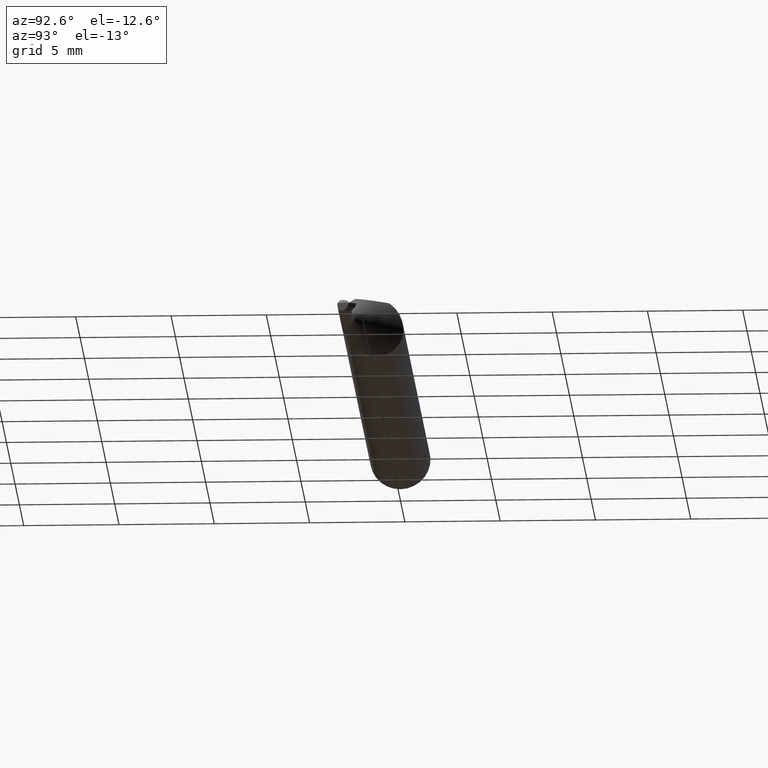
[diagram: clean part render]
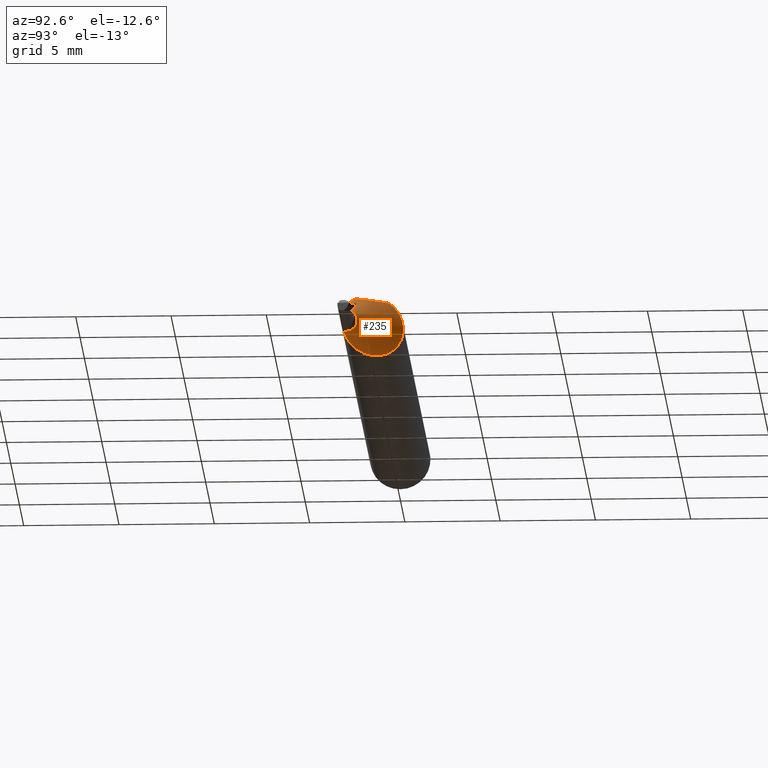
[diagram: same view with one face highlighted and labeled with its STEP entity id]
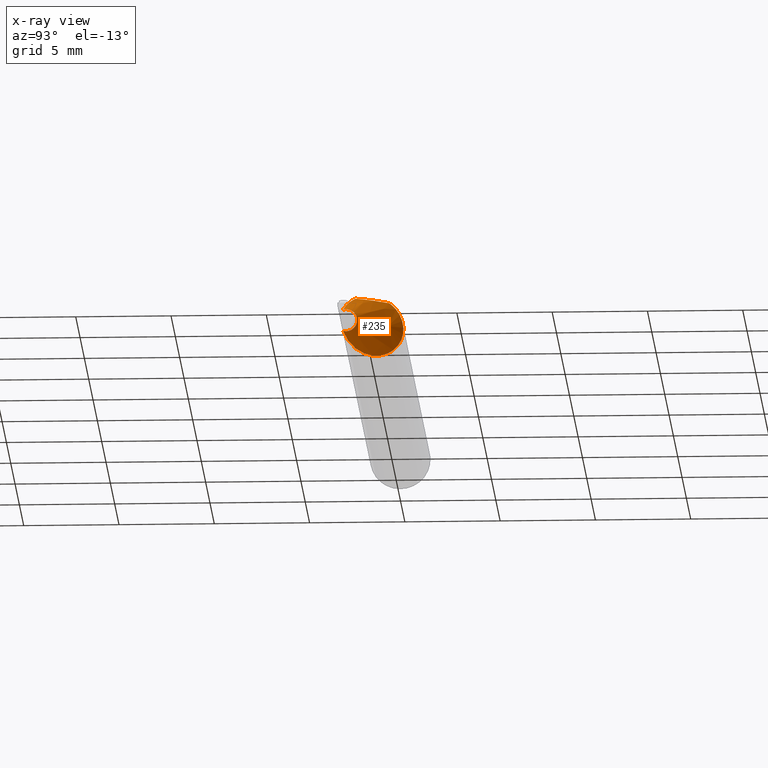
[diagram: x-ray of the same camera — body ghosted, the highlighted face saturated]
A machine part, auxiliary view. The second image highlights one B-rep face of the part: STEP entity #235.
The next image is the same camera in x-ray: the body ghosted, the highlighted face saturated — about 0% of this face is hidden behind the body in this view.
In plain terms, the highlighted conical surface has half-angle 45 deg.
Its self-contained STEP definition (entity closure, byte-faithful):
#21 = EDGE_CURVE ( 'NONE', #707, #754, #387, .T. ) ;
#33 = CARTESIAN_POINT ( 'NONE',  ( 1.255120519318515981, 0.03508918483241450781, -0.05178107122348592911 ) ) ;
#61 = CARTESIAN_POINT ( 'NONE',  ( 1.322462965412670277, -0.05242313377551017367, 0.03436517021900221264 ) ) ;
#80 = CARTESIAN_POINT ( 'NONE',  ( 1.267454584078048674, 0.01260720869674350486, -0.06124853553781112181 ) ) ;
#88 = DIRECTION ( 'NONE',  ( 0.000000000000000000, -1.000000000000000000, 0.000000000000000000 ) ) ;
#96 = CARTESIAN_POINT ( 'NONE',  ( 1.259711240465376747, 0.02638752936846765554, -0.05671180232617656358 ) ) ;
#105 = CARTESIAN_POINT ( 'NONE',  ( 1.301127731721387182, -0.03386738844375222074, 0.05234999999999997294 ) ) ;
#117 = DIRECTION ( 'NONE',  ( -1.000000000000000000, -5.738690339323287023E-17, -0.000000000000000000 ) ) ;
#125 = CARTESIAN_POINT ( 'NONE',  ( 1.333322330470335881, -0.05810997040527625390, 0.02259986370529519506 ) ) ;
#140 = CARTESIAN_POINT ( 'NONE',  ( 1.319252352888224955, -0.05006968415849936960, -0.03739237339314652186 ) ) ;
#145 = CARTESIAN_POINT ( 'NONE',  ( 1.251549129668147575, 0.04215857753974009553, 0.04623189580670657856 ) ) ;
#156 = EDGE_CURVE ( 'NONE', #707, #277, #674, .T. ) ;
#164 = CARTESIAN_POINT ( 'NONE',  ( 1.295903638438954397, -0.02116583655497127070, 0.05234999999999997988 ) ) ;
#173 = CARTESIAN_POINT ( 'NONE',  ( 1.298966724932452577, -0.02737628946790740883, 0.05234999999999997294 ) ) ;
#183 = CARTESIAN_POINT ( 'NONE',  ( 1.241944660940673462, -0.05235000000000003539, 0.000000000000000000 ) ) ;
#225 = CARTESIAN_POINT ( 'NONE',  ( 1.333322330470335881, -0.05810997040527625390, -0.02259986370529519506 ) ) ;
#235 = ADVANCED_FACE ( 'NONE', ( #733 ), #368, .T. ) ;
#248 = ORIENTED_EDGE ( 'NONE', *, *, #156, .T. ) ;
#252 = CIRCLE ( 'NONE', #323, 0.02332233047033629991 ) ;
#257 = AXIS2_PLACEMENT_3D ( 'NONE', #183, #117, #439 ) ;
#274 = CARTESIAN_POINT ( 'NONE',  ( 1.243272724521851558, 0.05945386056944194225, 0.01957025641302970534 ) ) ;
#277 = VERTEX_POINT ( 'NONE', #706 ) ;
#280 = CARTESIAN_POINT ( 'NONE',  ( 1.278998297401819029, -0.006049595647838722397, -0.06275710159956590650 ) ) ;
#310 = CARTESIAN_POINT ( 'NONE',  ( 1.255778608326025614, 0.03386738844375224849, 0.05234999999999997294 ) ) ;
#323 = AXIS2_PLACEMENT_3D ( 'NONE', #639, #326, #88 ) ;
#326 = DIRECTION ( 'NONE',  ( -1.000000000000000000, -5.738690339323287023E-17, -0.000000000000000000 ) ) ;
#333 = CARTESIAN_POINT ( 'NONE',  ( 1.241873511088373849, 0.06250586468241341176, 0.003396618903314566063 ) ) ;
#338 = CARTESIAN_POINT ( 'NONE',  ( 1.245021625917490660, 0.05568172665076242395, -0.02855154692902700173 ) ) ;
#342 = CARTESIAN_POINT ( 'NONE',  ( 1.246566698396099460, 0.05241341464178986276, 0.03419461053979926807 ) ) ;
#348 = CARTESIAN_POINT ( 'NONE',  ( 1.285224182788650138, -0.003615021247189862275, 0.05234999999999997294 ) ) ;
#355 = CARTESIAN_POINT ( 'NONE',  ( 1.264639298171978288, 0.02350123349129881051, 0.05234999999999997294 ) ) ;
#368 = CONICAL_SURFACE ( 'NONE', #257, 0.1147000000000000380, 0.7853981633974553844 ) ;
#370 = ORIENTED_EDGE ( 'NONE', *, *, #598, .T. ) ;
#380 = ORIENTED_EDGE ( 'NONE', *, *, #21, .F. ) ;
#387 = B_SPLINE_CURVE_WITH_KNOTS ( 'NONE', 3,
 ( #727, #173, #164, #474, #348, #418, #355, #778 ),
 .UNSPECIFIED., .F., .F.,
 ( 4, 2, 2, 4 ),
 ( 0.001839256232207844149, 0.002352703369855393099, 0.002866150507502942049, 0.003893044782798039949 ),
 .UNSPECIFIED. ) ;
#391 = CARTESIAN_POINT ( 'NONE',  ( 1.253556232987831365, 0.03814937942353800043, 0.04957980225740116209 ) ) ;
#399 = B_SPLINE_CURVE_WITH_KNOTS ( 'NONE', 3,
 ( #225, #576, #469, #140, #451, #655, #702, #716, #650, #456, #280, #408, #80, #518, #96, #33, #591, #401, #529, #338, #465, #595, #522, #333, #771, #274, #699, #342, #712, #145, #391, #644 ),
 .UNSPECIFIED., .F., .F.,
 ( 4, 2, 2, 2, 2, 2, 2, 2, 2, 2, 2, 2, 2, 2, 2, 4 ),
 ( 3.141556408833838577E-07, 0.0004180711684555225372, 0.0008358281812701616898, 0.001253585194084800734, 0.001671342206899439995, 0.002506856232528705507, 0.002924613245343343684, 0.003342370258157982294, 0.003760127270972620905, 0.004177884283787259082, 0.004595641296601897692, 0.005013398309416536303, 0.005431155322231174913, 0.005848912335045812656, 0.006266669347860451267, 0.006684426360675089010 ),
 .UNSPECIFIED. ) ;
#401 = CARTESIAN_POINT ( 'NONE',  ( 1.249336385306930586, 0.04664343417362033090, -0.04169559551049442647 ) ) ;
#408 = CARTESIAN_POINT ( 'NONE',  ( 1.270212671126061732, 0.007964350568566386929, -0.06201591607959299618 ) ) ;
#418 = CARTESIAN_POINT ( 'NONE',  ( 1.273286918736876272, 0.01297177664154523097, 0.05234999999999996600 ) ) ;
#439 = DIRECTION ( 'NONE',  ( 0.000000000000000000, -1.000000000000000000, 0.000000000000000000 ) ) ;
#451 = CARTESIAN_POINT ( 'NONE',  ( 1.315693297453277122, -0.04740452641559396441, -0.04072149185410162825 ) ) ;
#456 = CARTESIAN_POINT ( 'NONE',  ( 1.285197367530990231, -0.01496506956819954048, -0.06116378637257558620 ) ) ;
#465 = CARTESIAN_POINT ( 'NONE',  ( 1.243953314377158170, 0.05798227213337980163, -0.02356793370806698623 ) ) ;
#469 = CARTESIAN_POINT ( 'NONE',  ( 1.326305191432809227, -0.05463225618782638349, -0.03033940413937098041 ) ) ;
#474 = CARTESIAN_POINT ( 'NONE',  ( 1.289027108239478636, -0.009278969497925417670, 0.05234999999999997988 ) ) ;
#491 = EDGE_LOOP ( 'NONE', ( #248, #571, #370, #380 ) ) ;
#518 = CARTESIAN_POINT ( 'NONE',  ( 1.262220060141003186, 0.02178710769785278945, -0.05861439033899371737 ) ) ;
#522 = CARTESIAN_POINT ( 'NONE',  ( 1.242050216156551867, 0.06211875806314123838, -0.007731755063596832539 ) ) ;
#529 = CARTESIAN_POINT ( 'NONE',  ( 1.247690084237838448, 0.05005992948464350195, -0.03754529231266124506 ) ) ;
#552 = CARTESIAN_POINT ( 'NONE',  ( 1.301127731721387182, -0.03386738844375222074, 0.05234999999999997294 ) ) ;
#571 = ORIENTED_EDGE ( 'NONE', *, *, #633, .T. ) ;
#576 = CARTESIAN_POINT ( 'NONE',  ( 1.329832065598398616, -0.05655503037142079609, -0.02659800814225248347 ) ) ;
#582 = CARTESIAN_POINT ( 'NONE',  ( 1.333322330470335881, -0.05810997040527625390, -0.02259986370529519506 ) ) ;
#591 = CARTESIAN_POINT ( 'NONE',  ( 1.253053083577869709, 0.03915679502391992278, -0.04879424187276955316 ) ) ;
#595 = CARTESIAN_POINT ( 'NONE',  ( 1.242469133884743115, 0.06119823572651277022, -0.01312125470293623412 ) ) ;
#598 = EDGE_CURVE ( 'NONE', #606, #754, #399, .T. ) ;
#606 = VERTEX_POINT ( 'NONE', #582 ) ;
#619 = CARTESIAN_POINT ( 'NONE',  ( 1.311684205657506430, -0.04427552890348873671, 0.04437147078182524657 ) ) ;
#633 = EDGE_CURVE ( 'NONE', #277, #606, #252, .T. ) ;
#639 = CARTESIAN_POINT ( 'NONE',  ( 1.333322330470335881, -0.05235000000000002152, 0.000000000000000000 ) ) ;
#644 = CARTESIAN_POINT ( 'NONE',  ( 1.255778608326025614, 0.03386738844375224849, 0.05234999999999997294 ) ) ;
#650 = CARTESIAN_POINT ( 'NONE',  ( 1.295092084230298868, -0.02722257574167549418, -0.05626556462563508249 ) ) ;
#655 = CARTESIAN_POINT ( 'NONE',  ( 1.308700991055678164, -0.04146774216951440439, -0.04675313233220947801 ) ) ;
#674 = B_SPLINE_CURVE_WITH_KNOTS ( 'NONE', 3,
 ( #552, #675, #619, #61, #740, #125 ),
 .UNSPECIFIED., .F., .F.,
 ( 4, 2, 4 ),
 ( 4.636622646636788662E-07, 0.0006388245031314886959, 0.001277185343998313901 ),
 .UNSPECIFIED. ) ;
#675 = CARTESIAN_POINT ( 'NONE',  ( 1.306395572134182226, -0.03945390846926580264, 0.04873584825686974598 ) ) ;
#699 = CARTESIAN_POINT ( 'NONE',  ( 1.244176447389073292, 0.05749403757897956352, 0.02471584648049969177 ) ) ;
#702 = CARTESIAN_POINT ( 'NONE',  ( 1.305267504215336327, -0.03820397931512257983, -0.04945938863403304825 ) ) ;
#706 = CARTESIAN_POINT ( 'NONE',  ( 1.333322330470335881, -0.05810997040527625390, 0.02259986370529519506 ) ) ;
#707 = VERTEX_POINT ( 'NONE', #105 ) ;
#712 = CARTESIAN_POINT ( 'NONE',  ( 1.248071990013955634, 0.04925460598966223402, 0.03858390388309070052 ) ) ;
#716 = CARTESIAN_POINT ( 'NONE',  ( 1.298478139746371829, -0.03110052225048750771, -0.05420823438657233762 ) ) ;
#727 = CARTESIAN_POINT ( 'NONE',  ( 1.301127731721387182, -0.03386738844375222074, 0.05234999999999997294 ) ) ;
#733 = FACE_OUTER_BOUND ( 'NONE', #491, .T. ) ;
#740 = CARTESIAN_POINT ( 'NONE',  ( 1.327968397130582456, -0.05572475163419916833, 0.02873286494834792482 ) ) ;
#754 = VERTEX_POINT ( 'NONE', #310 ) ;
#771 = CARTESIAN_POINT ( 'NONE',  ( 1.242120742347022411, 0.06196132917203930196, 0.008862852809144915189 ) ) ;
#778 = CARTESIAN_POINT ( 'NONE',  ( 1.255778608326025614, 0.03386738844375224849, 0.05234999999999997294 ) ) ;